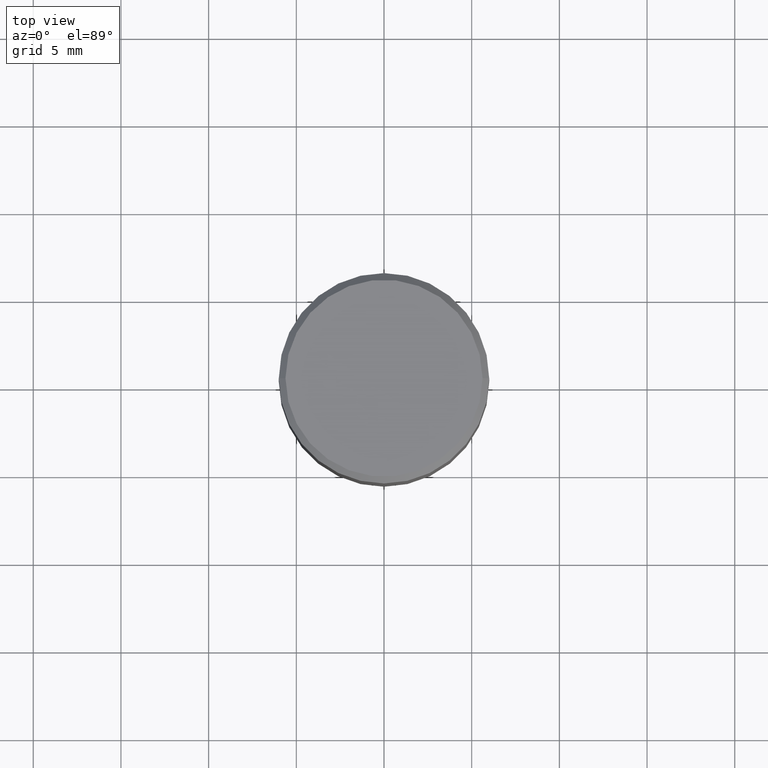
[diagram: clean part render]
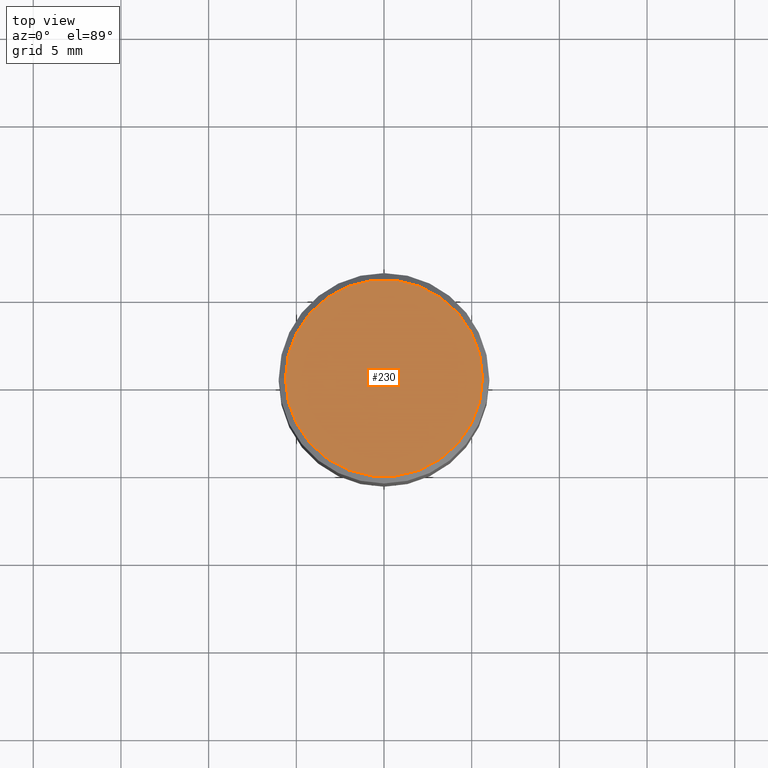
[diagram: same view with one face highlighted and labeled with its STEP entity id]
A machine part, top view. The second image highlights one B-rep face of the part: STEP entity #230.
In plain terms, the highlighted planar face has unit normal (0, -0, -1).
Its self-contained STEP definition (entity closure, byte-faithful):
#10 = CIRCLE ( 'NONE', #43, 0.2212000000000000077 ) ;
#38 = DIRECTION ( 'NONE',  ( 1.000000000000000000, -6.982962677686267499E-15, 4.877828720335458505E-29 ) ) ;
#43 = AXIS2_PLACEMENT_3D ( 'NONE', #399, #438, #38 ) ;
#56 = PLANE ( 'NONE',  #110 ) ;
#90 = CARTESIAN_POINT ( 'NONE',  ( 0.2212000000000000077, -1.595182002131672613E-15, 4.701447564593453826E-17 ) ) ;
#110 = AXIS2_PLACEMENT_3D ( 'NONE', #196, #238, #417 ) ;
#123 = FACE_OUTER_BOUND ( 'NONE', #437, .T. ) ;
#128 = VERTEX_POINT ( 'NONE', #90 ) ;
#130 = DIRECTION ( 'NONE',  ( 1.000000000000000000, -6.982962677686267499E-15, 4.877828720335458505E-29 ) ) ;
#148 = CIRCLE ( 'NONE', #420, 0.2212000000000000077 ) ;
#180 = DIRECTION ( 'NONE',  ( -2.445468806185136597E-29, 3.491481338843145583E-15, 1.000000000000000000 ) ) ;
#196 = CARTESIAN_POINT ( 'NONE',  ( 1.544631344304202170E-15, 0.2212000000000000077, -7.488084343291421542E-16 ) ) ;
#230 = ADVANCED_FACE ( 'NONE', ( #123 ), #56, .F. ) ;
#238 = DIRECTION ( 'NONE',  ( 2.438088387897960049E-29, -3.491481338843145188E-15, -1.000000000000000000 ) ) ;
#315 = EDGE_CURVE ( 'NONE', #331, #128, #10, .T. ) ;
#317 = EDGE_CURVE ( 'NONE', #128, #331, #148, .T. ) ;
#331 = VERTEX_POINT ( 'NONE', #427 ) ;
#365 = CARTESIAN_POINT ( 'NONE',  ( -1.149724336312568861E-45, 1.641501643732376549E-31, 4.701447564592356200E-17 ) ) ;
#398 = ORIENTED_EDGE ( 'NONE', *, *, #317, .T. ) ;
#399 = CARTESIAN_POINT ( 'NONE',  ( -1.149724336312568861E-45, 1.641501643732376549E-31, 4.701447564592356200E-17 ) ) ;
#400 = ORIENTED_EDGE ( 'NONE', *, *, #315, .T. ) ;
#417 = DIRECTION ( 'NONE',  ( -1.000000000000000000, 6.982962677686265922E-15, -4.876176775795935793E-29 ) ) ;
#420 = AXIS2_PLACEMENT_3D ( 'NONE', #365, #180, #130 ) ;
#427 = CARTESIAN_POINT ( 'NONE',  ( -0.2212000000000000077, 1.570817454345525709E-15, 4.701447564591266586E-17 ) ) ;
#437 = EDGE_LOOP ( 'NONE', ( #400, #398 ) ) ;
#438 = DIRECTION ( 'NONE',  ( -2.445468806185136597E-29, 3.491481338843145583E-15, 1.000000000000000000 ) ) ;